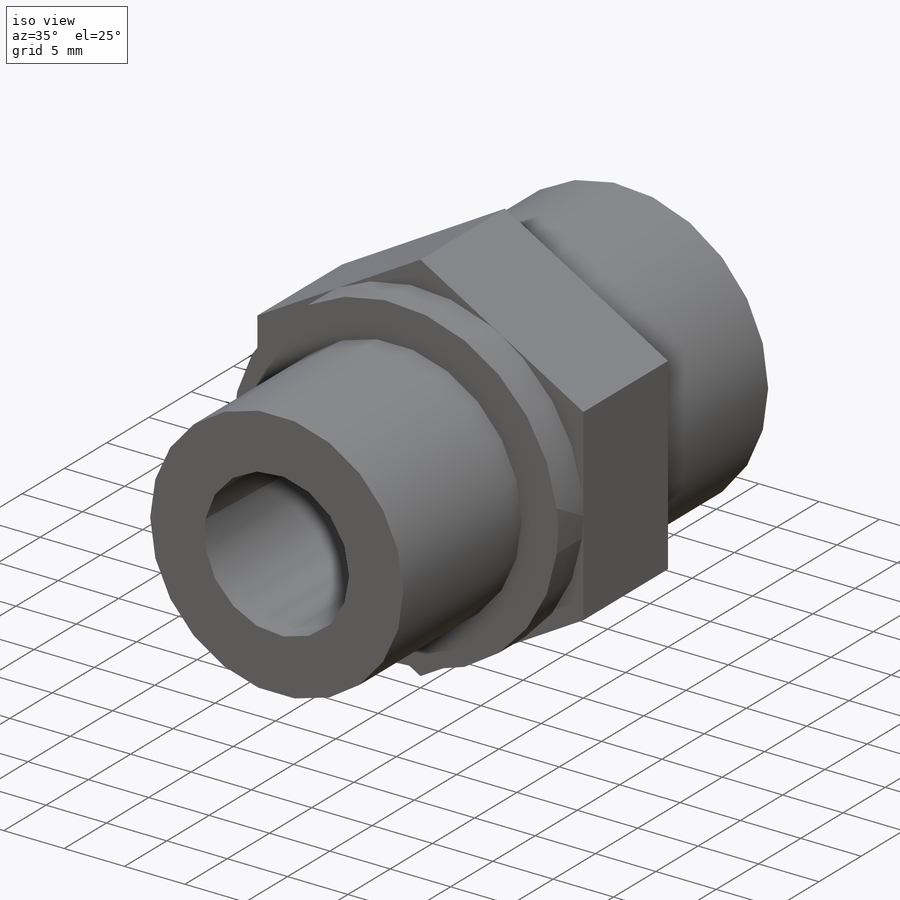
[diagram: iso view]
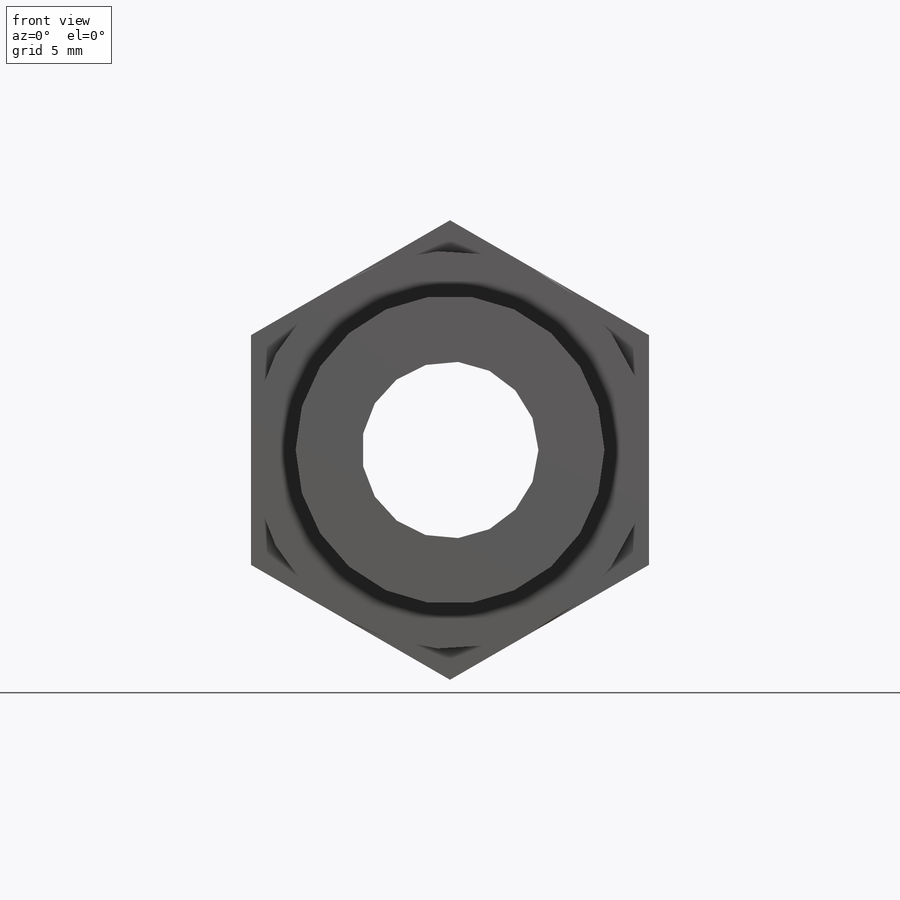
[diagram: front view]
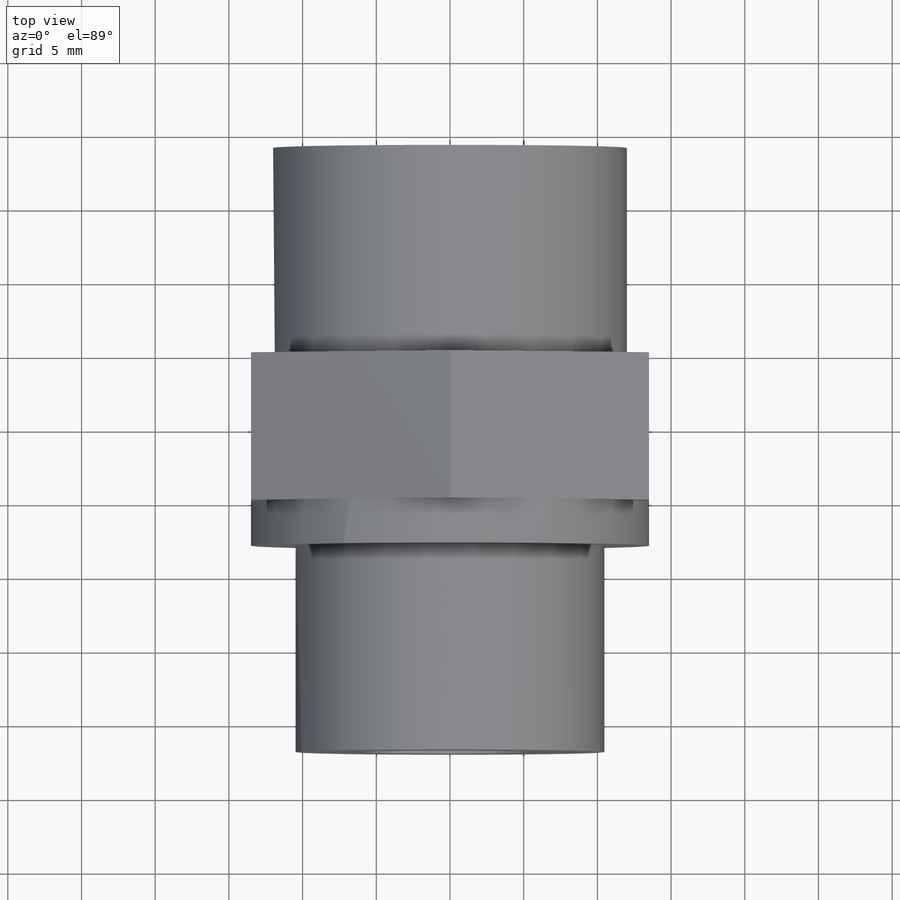
[diagram: top view]
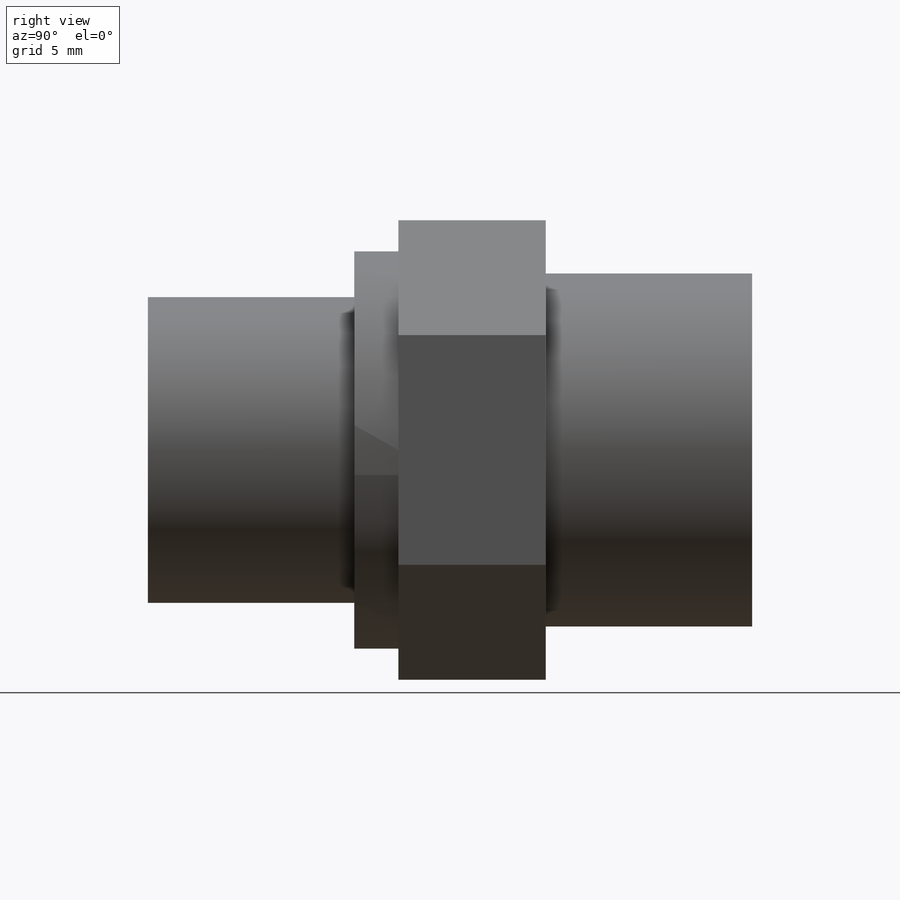
[diagram: right view]
SOLIDWORKS PART (.sldprt)
format: sldprt  version: not decoded by parser v0  size: 987,648 bytes
history: native  units: mm
features: sketch x6, extrude x4, plane x3, material x1, cut_extrude x1, cut_revolve x1 + 1 further entry (+12 scaffold rows collapsed; 1 parser-record rows omitted)
feature tree (30):
  parser-record x1  (decoder bookkeeping rows leaked as tree rows — omitted from the tree; the rows remain in map.json)
  scaffold x12  (default folders/planes/origin — collapsed)
  material  "Material <not specified>"
  plane  "Plane1"
  plane  "Plane2"
  plane  "Plane3"
  "Design Table"
  sketch  "Sketch1"  dims[Nøglevidde=27.0mm]
  extrude  "Base-Extrude"  Depth=10mm Nøglebredde=10mm
  sketch  "Sketch2"  dims[Nøglediameter=27.0mm]
  extrude  "Boss-Extrude1"  Depth=3mm Nøg.dia.bredde=3mm
  sketch  "Sketch3"  dims[RG-Gevind=20.955mm]
  extrude  "Boss-Extrude2"  Depth=14mm RG-Længde=14mm
  sketch  "Sketch4"  dims[M-Gevind=24.0mm]
  extrude  "Boss-Extrude3"  Depth=14mm L3 (M-Længde)=14mm
  sketch  "Sketch5"  dims[D1 (Indv.diameter)=12.0mm]
  cut_extrude  "Cut-Extrude1"  [1 undecoded]
  sketch  "Sketch7"  dims[c1.D1=12.0mm c1.D4=18.3mm c1.D2=16.0mm c1.D3=~6.109214mm c2.D3=12.0deg c2.L8=8.5mm]
  cut_revolve  "Cut-Revolve1"  Angle=360deg ID=-1
decode coverage: 11 of 12 modeling features carry decoded parameters; 1 rows unclassified (native names shown)
note: ~ marks probable driven/reference dimensions
note: 1 parameter value undecoded
note: suppression state not decoded; provenance and decode notes live in map.json
